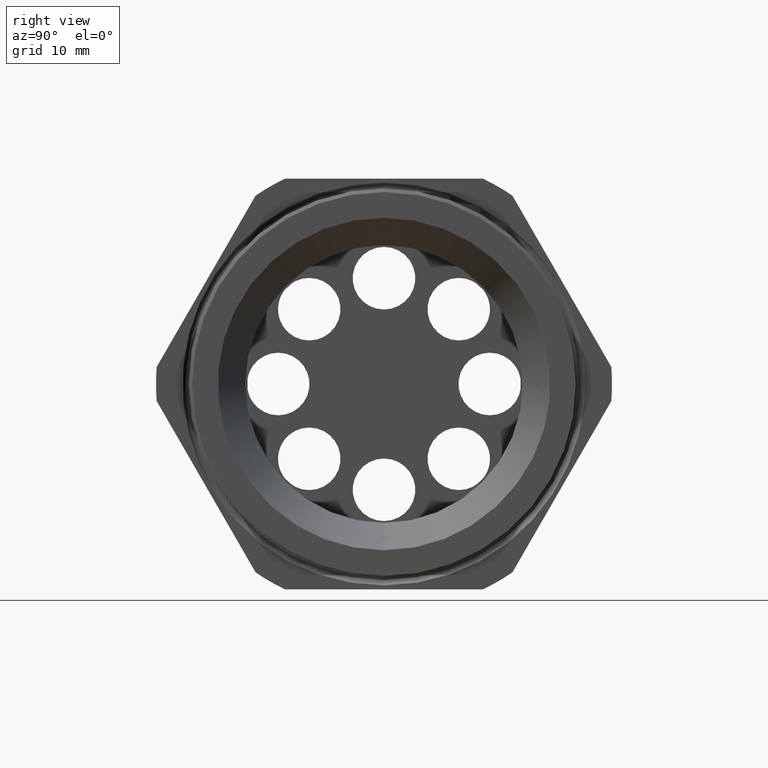
[diagram: clean part render]
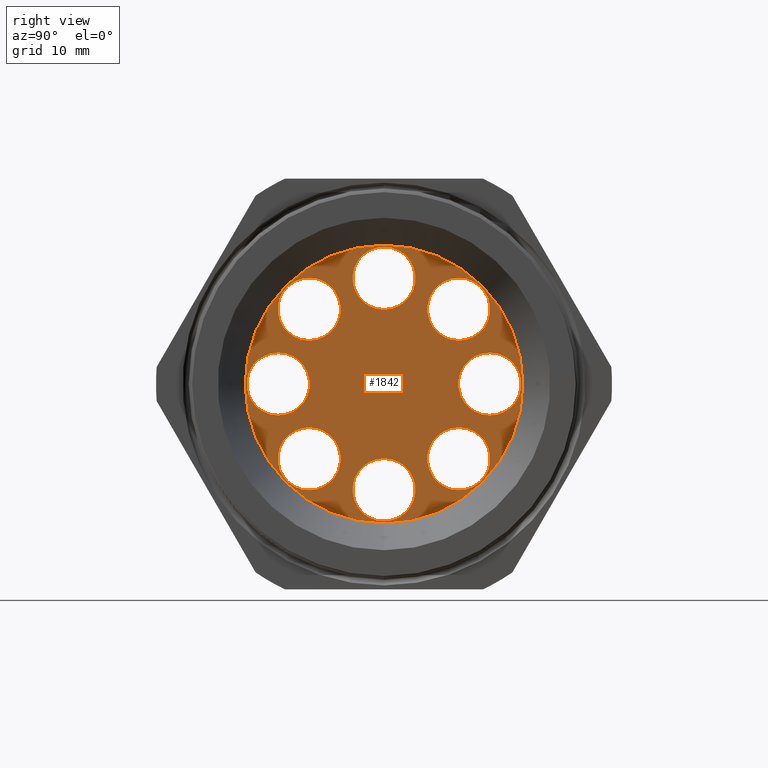
[diagram: same view with one face highlighted and labeled with its STEP entity id]
A machine part, right view. The second image highlights one B-rep face of the part: STEP entity #1842.
In plain terms, the highlighted planar face has unit normal (-1, 0, 0).
Its self-contained STEP definition (entity closure, byte-faithful):
#1232 = DIRECTION ( 'NONE',  ( 0.0000000000000000000, -0.7071067811865536800, -0.7071067811865413600 ) ) ;
#1233 = DIRECTION ( 'NONE',  ( -1.000000000000000000, 0.0000000000000000000, 0.0000000000000000000 ) ) ;
#1234 = CARTESIAN_POINT ( 'NONE',  ( -1.739999999999999500, 0.4661389322937998200, 0.4661389322937917200 ) ) ;
#1235 = AXIS2_PLACEMENT_3D ( 'NONE', #1234, #1233, #1232 ) ;
#1236 = CIRCLE ( 'NONE', #1235, 0.1949999999999999800 ) ;
#1298 = CARTESIAN_POINT ( 'NONE',  ( -1.739999999999999500, -0.4661389322937966000, -0.4661389322937948800 ) ) ;
#1301 = CARTESIAN_POINT ( 'NONE',  ( -1.739999999999999500, -0.6592199999999999200, 0.1950000000000022500 ) ) ;
#1302 = DIRECTION ( 'NONE',  ( 0.0000000000000000000, 1.000000000000000000, -3.491483361109382100E-015 ) ) ;
#1303 = DIRECTION ( 'NONE',  ( -1.000000000000000000, 0.0000000000000000000, 0.0000000000000000000 ) ) ;
#1304 = CARTESIAN_POINT ( 'NONE',  ( -1.739999999999999500, -0.6592199999999999200, 2.301655661310526300E-015 ) ) ;
#1305 = AXIS2_PLACEMENT_3D ( 'NONE', #1304, #1303, #1302 ) ;
#1306 = CIRCLE ( 'NONE', #1305, 0.1949999999999999800 ) ;
#1351 = DIRECTION ( 'NONE',  ( 0.0000000000000000000, 0.7071067811865486800, 0.7071067811865462400 ) ) ;
#1352 = DIRECTION ( 'NONE',  ( -1.000000000000000000, 0.0000000000000000000, 0.0000000000000000000 ) ) ;
#1353 = AXIS2_PLACEMENT_3D ( 'NONE', #1298, #1352, #1351 ) ;
#1354 = CIRCLE ( 'NONE', #1353, 0.1950000000000000100 ) ;
#1543 = CARTESIAN_POINT ( 'NONE',  ( -1.739999999999999500, 0.4661389322937901100, -0.6611389322938013800 ) ) ;
#1645 = CARTESIAN_POINT ( 'NONE',  ( -1.739999999999999500, -0.6592199999999999200, -0.1949999999999976800 ) ) ;
#1758 = VERTEX_POINT ( 'NONE', #3665 ) ;
#1762 = VERTEX_POINT ( 'NONE', #3655 ) ;
#1763 = ORIENTED_EDGE ( 'NONE', *, *, #1865, .F. ) ;
#1764 = ORIENTED_EDGE ( 'NONE', *, *, #1766, .T. ) ;
#1766 = EDGE_CURVE ( 'NONE', #1818, #1819, #3646, .T. ) ;
#1767 = ORIENTED_EDGE ( 'NONE', *, *, #1821, .T. ) ;
#1770 = ORIENTED_EDGE ( 'NONE', *, *, #1845, .F. ) ;
#1772 = EDGE_LOOP ( 'NONE', ( #1763, #1770 ) ) ;
#1818 = VERTEX_POINT ( 'NONE', #3799 ) ;
#1819 = VERTEX_POINT ( 'NONE', #3798 ) ;
#1821 = EDGE_CURVE ( 'NONE', #1819, #1818, #3797, .T. ) ;
#1841 = EDGE_LOOP ( 'NONE', ( #1991, #1919 ) ) ;
#1842 = ADVANCED_FACE ( 'NONE', ( #3818, #3817, #3816, #3815, #3814, #3813, #3812, #3811, #3810 ), #3809, .F. ) ;
#1845 = EDGE_CURVE ( 'NONE', #1861, #1864, #3804, .T. ) ;
#1861 = VERTEX_POINT ( 'NONE', #3839 ) ;
#1864 = VERTEX_POINT ( 'NONE', #3837 ) ;
#1865 = EDGE_CURVE ( 'NONE', #1864, #1861, #3900, .T. ) ;
#1892 = EDGE_CURVE ( 'NONE', #2183, #2182, #3913, .T. ) ;
#1910 = ORIENTED_EDGE ( 'NONE', *, *, #1892, .T. ) ;
#1919 = ORIENTED_EDGE ( 'NONE', *, *, #2149, .T. ) ;
#1924 = ORIENTED_EDGE ( 'NONE', *, *, #1925, .T. ) ;
#1925 = EDGE_CURVE ( 'NONE', #2230, #2229, #3969, .T. ) ;
#1928 = ORIENTED_EDGE ( 'NONE', *, *, #2181, .T. ) ;
#1930 = EDGE_LOOP ( 'NONE', ( #1924, #2026 ) ) ;
#1933 = EDGE_LOOP ( 'NONE', ( #1935, #2069 ) ) ;
#1935 = ORIENTED_EDGE ( 'NONE', *, *, #2040, .T. ) ;
#1950 = ORIENTED_EDGE ( 'NONE', *, *, #2192, .T. ) ;
#1960 = EDGE_LOOP ( 'NONE', ( #1910, #1928 ) ) ;
#1988 = EDGE_CURVE ( 'NONE', #2151, #5823, #4119, .T. ) ;
#1991 = ORIENTED_EDGE ( 'NONE', *, *, #1988, .T. ) ;
#2002 = EDGE_CURVE ( 'NONE', #1758, #1762, #4145, .T. ) ;
#2004 = ORIENTED_EDGE ( 'NONE', *, *, #5735, .T. ) ;
#2005 = EDGE_LOOP ( 'NONE', ( #1764, #1767 ) ) ;
#2009 = ORIENTED_EDGE ( 'NONE', *, *, #2002, .T. ) ;
#2016 = EDGE_CURVE ( 'NONE', #5730, #5913, #4124, .T. ) ;
#2019 = ORIENTED_EDGE ( 'NONE', *, *, #5729, .T. ) ;
#2020 = EDGE_LOOP ( 'NONE', ( #2009, #2004 ) ) ;
#2026 = ORIENTED_EDGE ( 'NONE', *, *, #5700, .T. ) ;
#2028 = EDGE_LOOP ( 'NONE', ( #2030, #1950 ) ) ;
#2030 = ORIENTED_EDGE ( 'NONE', *, *, #2032, .T. ) ;
#2032 = EDGE_CURVE ( 'NONE', #2195, #2194, #4158, .T. ) ;
#2034 = ORIENTED_EDGE ( 'NONE', *, *, #2016, .T. ) ;
#2038 = EDGE_LOOP ( 'NONE', ( #2034, #2019 ) ) ;
#2040 = EDGE_CURVE ( 'NONE', #2144, #2143, #4208, .T. ) ;
#2069 = ORIENTED_EDGE ( 'NONE', *, *, #2142, .T. ) ;
#2142 = EDGE_CURVE ( 'NONE', #2143, #2144, #4391, .T. ) ;
#2143 = VERTEX_POINT ( 'NONE', #4386 ) ;
#2144 = VERTEX_POINT ( 'NONE', #4385 ) ;
#2149 = EDGE_CURVE ( 'NONE', #5823, #2151, #4378, .T. ) ;
#2151 = VERTEX_POINT ( 'NONE', #4431 ) ;
#2181 = EDGE_CURVE ( 'NONE', #2182, #2183, #4451, .T. ) ;
#2182 = VERTEX_POINT ( 'NONE', #4442 ) ;
#2183 = VERTEX_POINT ( 'NONE', #4441 ) ;
#2192 = EDGE_CURVE ( 'NONE', #2194, #2195, #4481, .T. ) ;
#2194 = VERTEX_POINT ( 'NONE', #4477 ) ;
#2195 = VERTEX_POINT ( 'NONE', #4476 ) ;
#2229 = VERTEX_POINT ( 'NONE', #4553 ) ;
#2230 = VERTEX_POINT ( 'NONE', #4552 ) ;
#3643 = DIRECTION ( 'NONE',  ( -1.000000000000000000, 0.0000000000000000000, 0.0000000000000000000 ) ) ;
#3644 = CARTESIAN_POINT ( 'NONE',  ( -1.739999999999999500, 0.0000000000000000000, -0.6592199999999999200 ) ) ;
#3645 = AXIS2_PLACEMENT_3D ( 'NONE', #3644, #3643, #5848 ) ;
#3646 = CIRCLE ( 'NONE', #3645, 0.1949999999999999800 ) ;
#3655 = CARTESIAN_POINT ( 'NONE',  ( -1.739999999999999500, -0.4661389322937966000, -0.6611389322937948300 ) ) ;
#3665 = CARTESIAN_POINT ( 'NONE',  ( -1.739999999999999500, -0.4661389322937966000, -0.2711389322937949300 ) ) ;
#3793 = DIRECTION ( 'NONE',  ( 0.0000000000000000000, 0.0000000000000000000, 1.000000000000000000 ) ) ;
#3794 = DIRECTION ( 'NONE',  ( -1.000000000000000000, 0.0000000000000000000, 0.0000000000000000000 ) ) ;
#3795 = CARTESIAN_POINT ( 'NONE',  ( -1.739999999999999500, 0.0000000000000000000, -0.6592199999999999200 ) ) ;
#3796 = AXIS2_PLACEMENT_3D ( 'NONE', #3795, #3794, #3793 ) ;
#3797 = CIRCLE ( 'NONE', #3796, 0.1949999999999999800 ) ;
#3798 = CARTESIAN_POINT ( 'NONE',  ( -1.739999999999999500, 2.388061258337338400E-017, -0.8542199999999998700 ) ) ;
#3799 = CARTESIAN_POINT ( 'NONE',  ( -1.739999999999999500, 0.0000000000000000000, -0.4642199999999999100 ) ) ;
#3801 = DIRECTION ( 'NONE',  ( -1.000000000000000000, 0.0000000000000000000, 0.0000000000000000000 ) ) ;
#3802 = CARTESIAN_POINT ( 'NONE',  ( -1.739999999999999500, 0.0000000000000000000, 0.0000000000000000000 ) ) ;
#3803 = AXIS2_PLACEMENT_3D ( 'NONE', #3802, #3801, #3868 ) ;
#3804 = CIRCLE ( 'NONE', #3803, 0.8649999999999998800 ) ;
#3805 = DIRECTION ( 'NONE',  ( 0.0000000000000000000, 0.0000000000000000000, 1.000000000000000000 ) ) ;
#3806 = DIRECTION ( 'NONE',  ( -1.000000000000000000, 0.0000000000000000000, 0.0000000000000000000 ) ) ;
#3807 = CARTESIAN_POINT ( 'NONE',  ( -1.739999999999999500, 0.0000000000000000000, 0.0000000000000000000 ) ) ;
#3808 = AXIS2_PLACEMENT_3D ( 'NONE', #3807, #3806, #3805 ) ;
#3809 = PLANE ( 'NONE',  #3808 ) ;
#3810 = FACE_OUTER_BOUND ( 'NONE', #1772, .T. ) ;
#3811 = FACE_BOUND ( 'NONE', #2005, .T. ) ;
#3812 = FACE_BOUND ( 'NONE', #2020, .T. ) ;
#3813 = FACE_BOUND ( 'NONE', #2038, .T. ) ;
#3814 = FACE_BOUND ( 'NONE', #1933, .T. ) ;
#3815 = FACE_BOUND ( 'NONE', #2028, .T. ) ;
#3816 = FACE_BOUND ( 'NONE', #1930, .T. ) ;
#3817 = FACE_BOUND ( 'NONE', #1960, .T. ) ;
#3818 = FACE_BOUND ( 'NONE', #1841, .T. ) ;
#3837 = CARTESIAN_POINT ( 'NONE',  ( -1.739999999999999500, 0.0000000000000000000, 0.8649999999999998800 ) ) ;
#3839 = CARTESIAN_POINT ( 'NONE',  ( -1.739999999999999500, 1.059319481262460500E-016, -0.8649999999999998800 ) ) ;
#3868 = DIRECTION ( 'NONE',  ( 0.0000000000000000000, 0.0000000000000000000, 1.000000000000000000 ) ) ;
#3896 = DIRECTION ( 'NONE',  ( 0.0000000000000000000, 0.0000000000000000000, 1.000000000000000000 ) ) ;
#3897 = DIRECTION ( 'NONE',  ( -1.000000000000000000, 0.0000000000000000000, 0.0000000000000000000 ) ) ;
#3898 = CARTESIAN_POINT ( 'NONE',  ( -1.739999999999999500, 0.0000000000000000000, 0.0000000000000000000 ) ) ;
#3899 = AXIS2_PLACEMENT_3D ( 'NONE', #3898, #3897, #3896 ) ;
#3900 = CIRCLE ( 'NONE', #3899, 0.8649999999999998800 ) ;
#3909 = DIRECTION ( 'NONE',  ( 0.0000000000000000000, -1.000000000000000000, 1.047445008332814600E-014 ) ) ;
#3910 = DIRECTION ( 'NONE',  ( -1.000000000000000000, 0.0000000000000000000, 0.0000000000000000000 ) ) ;
#3911 = CARTESIAN_POINT ( 'NONE',  ( -1.739999999999999500, 0.6592199999999999200, -6.904966983931579800E-015 ) ) ;
#3912 = AXIS2_PLACEMENT_3D ( 'NONE', #3911, #3910, #3909 ) ;
#3913 = CIRCLE ( 'NONE', #3912, 0.1949999999999999800 ) ;
#3966 = DIRECTION ( 'NONE',  ( 0.0000000000000000000, -0.7071067811865536800, -0.7071067811865413600 ) ) ;
#3967 = DIRECTION ( 'NONE',  ( -1.000000000000000000, 0.0000000000000000000, 0.0000000000000000000 ) ) ;
#3968 = AXIS2_PLACEMENT_3D ( 'NONE', #3975, #3967, #3966 ) ;
#3969 = CIRCLE ( 'NONE', #3968, 0.1949999999999999800 ) ;
#3975 = CARTESIAN_POINT ( 'NONE',  ( -1.739999999999999500, 0.4661389322937998200, 0.4661389322937917200 ) ) ;
#4112 = DIRECTION ( 'NONE',  ( 0.0000000000000000000, -0.7071067811865389100, 0.7071067811865561200 ) ) ;
#4113 = DIRECTION ( 'NONE',  ( -1.000000000000000000, 0.0000000000000000000, 0.0000000000000000000 ) ) ;
#4114 = CARTESIAN_POINT ( 'NONE',  ( -1.739999999999999500, 0.4661389322937901100, -0.4661389322938014900 ) ) ;
#4115 = AXIS2_PLACEMENT_3D ( 'NONE', #4114, #4113, #4112 ) ;
#4119 = CIRCLE ( 'NONE', #4115, 0.1950000000000000100 ) ;
#4121 = DIRECTION ( 'NONE',  ( -1.000000000000000000, 0.0000000000000000000, 0.0000000000000000000 ) ) ;
#4122 = CARTESIAN_POINT ( 'NONE',  ( -1.739999999999999500, -0.6592199999999999200, 2.301655661310526300E-015 ) ) ;
#4123 = AXIS2_PLACEMENT_3D ( 'NONE', #4122, #4121, #4181 ) ;
#4124 = CIRCLE ( 'NONE', #4123, 0.1949999999999999800 ) ;
#4142 = DIRECTION ( 'NONE',  ( 0.0000000000000000000, 0.7071067811865486800, 0.7071067811865462400 ) ) ;
#4143 = DIRECTION ( 'NONE',  ( -1.000000000000000000, 0.0000000000000000000, 0.0000000000000000000 ) ) ;
#4144 = AXIS2_PLACEMENT_3D ( 'NONE', #4150, #4143, #4142 ) ;
#4145 = CIRCLE ( 'NONE', #4144, 0.1950000000000000100 ) ;
#4150 = CARTESIAN_POINT ( 'NONE',  ( -1.739999999999999500, -0.4661389322937966000, -0.4661389322937948800 ) ) ;
#4155 = DIRECTION ( 'NONE',  ( 0.0000000000000000000, -6.982966722218764100E-015, -1.000000000000000000 ) ) ;
#4156 = DIRECTION ( 'NONE',  ( -1.000000000000000000, 0.0000000000000000000, 0.0000000000000000000 ) ) ;
#4157 = AXIS2_PLACEMENT_3D ( 'NONE', #4164, #4156, #4155 ) ;
#4158 = CIRCLE ( 'NONE', #4157, 0.1949999999999999800 ) ;
#4164 = CARTESIAN_POINT ( 'NONE',  ( -1.739999999999999500, 4.603311322621052700E-015, 0.6592199999999999200 ) ) ;
#4181 = DIRECTION ( 'NONE',  ( 0.0000000000000000000, 1.000000000000000000, -3.491483361109382100E-015 ) ) ;
#4204 = DIRECTION ( 'NONE',  ( 0.0000000000000000000, 0.7071067811865438000, -0.7071067811865512400 ) ) ;
#4205 = DIRECTION ( 'NONE',  ( -1.000000000000000000, 0.0000000000000000000, 0.0000000000000000000 ) ) ;
#4206 = CARTESIAN_POINT ( 'NONE',  ( -1.739999999999999500, -0.4661389322937933300, 0.4661389322937982700 ) ) ;
#4207 = AXIS2_PLACEMENT_3D ( 'NONE', #4206, #4205, #4204 ) ;
#4208 = CIRCLE ( 'NONE', #4207, 0.1949999999999999800 ) ;
#4374 = DIRECTION ( 'NONE',  ( 0.0000000000000000000, -0.7071067811865389100, 0.7071067811865561200 ) ) ;
#4375 = DIRECTION ( 'NONE',  ( -1.000000000000000000, 0.0000000000000000000, 0.0000000000000000000 ) ) ;
#4376 = CARTESIAN_POINT ( 'NONE',  ( -1.739999999999999500, 0.4661389322937901100, -0.4661389322938014900 ) ) ;
#4377 = AXIS2_PLACEMENT_3D ( 'NONE', #4376, #4375, #4374 ) ;
#4378 = CIRCLE ( 'NONE', #4377, 0.1950000000000000100 ) ;
#4385 = CARTESIAN_POINT ( 'NONE',  ( -1.739999999999999500, -0.4661389322937933300, 0.6611389322937982800 ) ) ;
#4386 = CARTESIAN_POINT ( 'NONE',  ( -1.739999999999999500, -0.4661389322937933300, 0.2711389322937982600 ) ) ;
#4387 = DIRECTION ( 'NONE',  ( 0.0000000000000000000, 0.7071067811865438000, -0.7071067811865512400 ) ) ;
#4388 = DIRECTION ( 'NONE',  ( -1.000000000000000000, 0.0000000000000000000, 0.0000000000000000000 ) ) ;
#4389 = CARTESIAN_POINT ( 'NONE',  ( -1.739999999999999500, -0.4661389322937933300, 0.4661389322937982700 ) ) ;
#4390 = AXIS2_PLACEMENT_3D ( 'NONE', #4389, #4388, #4387 ) ;
#4391 = CIRCLE ( 'NONE', #4390, 0.1949999999999999800 ) ;
#4431 = CARTESIAN_POINT ( 'NONE',  ( -1.739999999999999500, 0.4661389322937901100, -0.2711389322938014800 ) ) ;
#4441 = CARTESIAN_POINT ( 'NONE',  ( -1.739999999999999500, 0.6592199999999999200, 0.1949999999999930700 ) ) ;
#4442 = CARTESIAN_POINT ( 'NONE',  ( -1.739999999999999500, 0.6592199999999999200, -0.1950000000000068600 ) ) ;
#4443 = DIRECTION ( 'NONE',  ( 0.0000000000000000000, -1.000000000000000000, 1.047445008332814600E-014 ) ) ;
#4444 = DIRECTION ( 'NONE',  ( -1.000000000000000000, 0.0000000000000000000, 0.0000000000000000000 ) ) ;
#4445 = CARTESIAN_POINT ( 'NONE',  ( -1.739999999999999500, 0.6592199999999999200, -6.904966983931579800E-015 ) ) ;
#4446 = AXIS2_PLACEMENT_3D ( 'NONE', #4445, #4444, #4443 ) ;
#4451 = CIRCLE ( 'NONE', #4446, 0.1949999999999999800 ) ;
#4476 = CARTESIAN_POINT ( 'NONE',  ( -1.739999999999999500, 4.603311322621052700E-015, 0.8542199999999998700 ) ) ;
#4477 = CARTESIAN_POINT ( 'NONE',  ( -1.739999999999999500, 4.627191935204426800E-015, 0.4642199999999999100 ) ) ;
#4478 = DIRECTION ( 'NONE',  ( 0.0000000000000000000, -6.982966722218764100E-015, -1.000000000000000000 ) ) ;
#4479 = DIRECTION ( 'NONE',  ( -1.000000000000000000, 0.0000000000000000000, 0.0000000000000000000 ) ) ;
#4480 = AXIS2_PLACEMENT_3D ( 'NONE', #4487, #4479, #4478 ) ;
#4481 = CIRCLE ( 'NONE', #4480, 0.1949999999999999800 ) ;
#4487 = CARTESIAN_POINT ( 'NONE',  ( -1.739999999999999500, 4.603311322621052700E-015, 0.6592199999999999200 ) ) ;
#4552 = CARTESIAN_POINT ( 'NONE',  ( -1.739999999999999500, 0.4661389322937998200, 0.6611389322937917300 ) ) ;
#4553 = CARTESIAN_POINT ( 'NONE',  ( -1.739999999999999500, 0.4661389322937998200, 0.2711389322937917100 ) ) ;
#5700 = EDGE_CURVE ( 'NONE', #2229, #2230, #1236, .T. ) ;
#5729 = EDGE_CURVE ( 'NONE', #5913, #5730, #1306, .T. ) ;
#5730 = VERTEX_POINT ( 'NONE', #1301 ) ;
#5735 = EDGE_CURVE ( 'NONE', #1762, #1758, #1354, .T. ) ;
#5823 = VERTEX_POINT ( 'NONE', #1543 ) ;
#5848 = DIRECTION ( 'NONE',  ( 0.0000000000000000000, 0.0000000000000000000, 1.000000000000000000 ) ) ;
#5913 = VERTEX_POINT ( 'NONE', #1645 ) ;